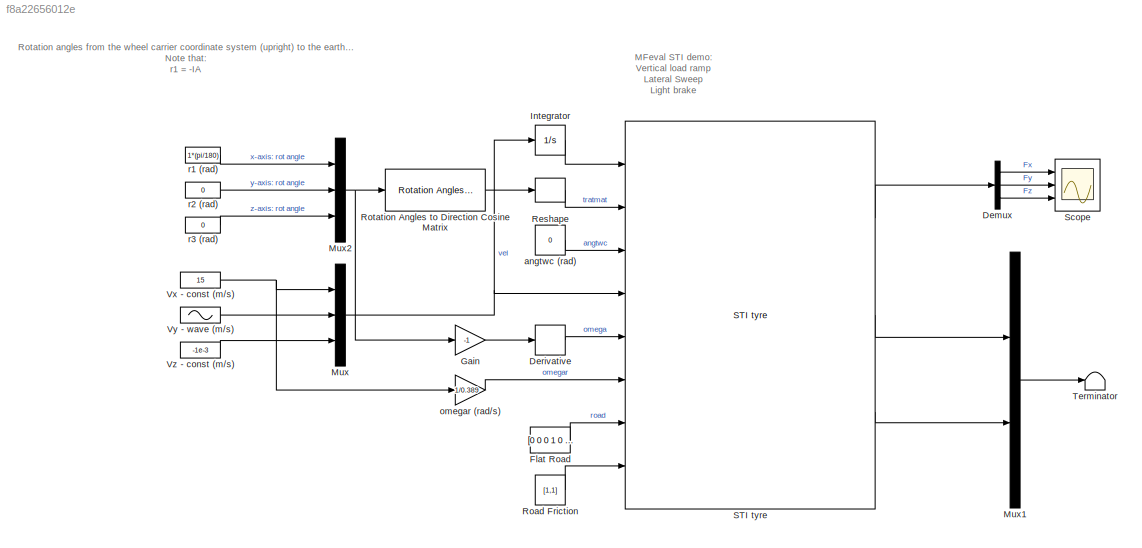
MODEL slx_f8a22656012e
KIND model
CONFIG AbsTol = auto
CONFIG EnableMultiTasking = off
CONFIG FixedStep = auto
CONFIG MaxStep = auto
CONFIG MinStep = auto
CONFIG RelTol = 1e-3
CONFIG SampleTimeConstraint = Unconstrained
CONFIG Solver = VariableStepAuto
CONFIG SolverName = VariableStepAuto
CONFIG StartTime = 0.0
CONFIG StopTime = 10
BLOCK [Demux] Demux
  DisplayOption = bar
  Outputs = 3
  Ports = [1, 3]
BLOCK [Derivative] Derivative
BLOCK [Constant] Flat Road
  Value = [0 0 0 1 0 0 0 1 0 0 0 1 0 0 0 0 0 0]
BLOCK [Gain] Gain
  Gain = -1
  OutDataTypeStr = Inherit: Inherit via internal rule
  ParamDataTypeStr = Inherit: Inherit via internal rule
  SaturateOnIntegerOverflow = off
BLOCK [Integrator] Integrator
  InitialCondition = 0.38
  Ports = [1, 1]
BLOCK [Mux] Mux
  DisplayOption = bar
  Inputs = 3
  Ports = [3, 1]
BLOCK [Mux] Mux1
  DisplayOption = bar
  Inputs = 2
  Ports = [2, 1]
BLOCK [Mux] Mux2
  DisplayOption = bar
  Inputs = 3
  Ports = [3, 1]
BLOCK [Reshape] Reshape
  Ports = [1, 1]
BLOCK [Constant] Road Friction
  Value = [1,1]
BLOCK [Reference] Rotation Angles to Direction Cosine Matrix  REF=sharedtransform/Rotation Angles to
Direction Cosine Matrix
  AttributesFormatString = Rotation Order: %<rotationOrder>
  Ports = [1, 1]
  SourceBlock = sharedtransform/Rotation Angles to\nDirection Cosine Matrix
  SourceProductBaseCode = AE
  SourceProductName = Aerospace Blockset
  SourceType = Ang2DCM
BLOCK [Reference] STI tyre  REF=mfeval_LIB/STI tyre
  Description = Magic Formula 6.1.2 tyre model including relaxation length and transient calculations
  Ports = [8, 3]
  SourceBlock = mfeval_LIB/STI tyre
  SourceProductName = MFeval Library
  SourceType = mfeval_STI_tyre
BLOCK [Scope] Scope
  NumInputPorts = 3
  Ports = [3]
  ScopeSpecificationString = Simulink.scopes.TimeScopeBlockCfg('CurrentConfiguration', extmgr.ConfigurationSet(extmgr.Configuration('Core','General UI',true),extmgr.Configuration('Core','Source UI',true),extmgr.Configuration('Sources','WiredSimulink',true),extmgr.Configuration('Visuals','Time Domain',true,'SerializedDisplays',{struct('MinYLimReal','-4372.01549','MaxYLimReal','385.11185','YLabelReal','','MinYLimMag','  0.00000...<+2668ch>
BLOCK [Terminator] Terminator
BLOCK [Constant] Vx - const (m//s)
  Value = 15
BLOCK [Sin] Vy - wave (m//s)
  Amplitude = 0.1
  Ports = [0, 1]
  SampleTime = 0
BLOCK [Constant] Vz - const (m//s)
  Value = -1e-3
BLOCK [Constant] angtwc (rad)
  Value = 0
BLOCK [Gain] omegar (rad//s)
  Gain = 1/0.389
  OutDataTypeStr = Inherit: Inherit via internal rule
  ParamDataTypeStr = Inherit: Inherit via internal rule
  SaturateOnIntegerOverflow = off
BLOCK [Constant] r1 (rad)
  Value = 1*(pi/180)
BLOCK [Constant] r2 (rad)
  Value = 0
BLOCK [Constant] r3 (rad)
  Value = 0
ANNOTATION (root): MFeval STI demo : Vertical load ramp Lateral Sweep Light brake
ANNOTATION (root): Rotation angles from the wheel carrier coordinate system (upright) to the earth-fixed axis system (global axis system). Note that: r1 = -IA
LINE Demux:1 -> Scope:1
LINE Demux:2 -> Scope:2
LINE Demux:3 -> Scope:3
LINE Derivative:1 -> STI tyre:5
LINE Flat Road:1 -> STI tyre:7
LINE Gain:1 -> Derivative:1
LINE Integrator:1 -> STI tyre:1
LINE Mux1:1 -> Terminator:1
NET Mux2:1 -> Gain:1, Rotation Angles to Direction Cosine Matrix:1
NET Mux:1 -> Integrator:1, STI tyre:4
LINE Reshape:1 -> STI tyre:2
LINE Road Friction:1 -> STI tyre:8
LINE Rotation Angles to Direction Cosine Matrix:1 -> Reshape:1
LINE STI tyre:1 -> Demux:1
LINE STI tyre:2 -> Mux1:1
LINE STI tyre:3 -> Mux1:2
NET Vx - const (m//s):1 -> Mux:1, omegar (rad//s):1
LINE Vy - wave (m//s):1 -> Mux:2
LINE Vz - const (m//s):1 -> Mux:3
LINE angtwc (rad):1 -> STI tyre:3
LINE omegar (rad//s):1 -> STI tyre:6
LINE r1 (rad):1 -> Mux2:1
LINE r2 (rad):1 -> Mux2:2
LINE r3 (rad):1 -> Mux2:3
note: NET lines group one-source signal fan-out (src -> all destinations, sorted); 1:1 wires keep LINE
